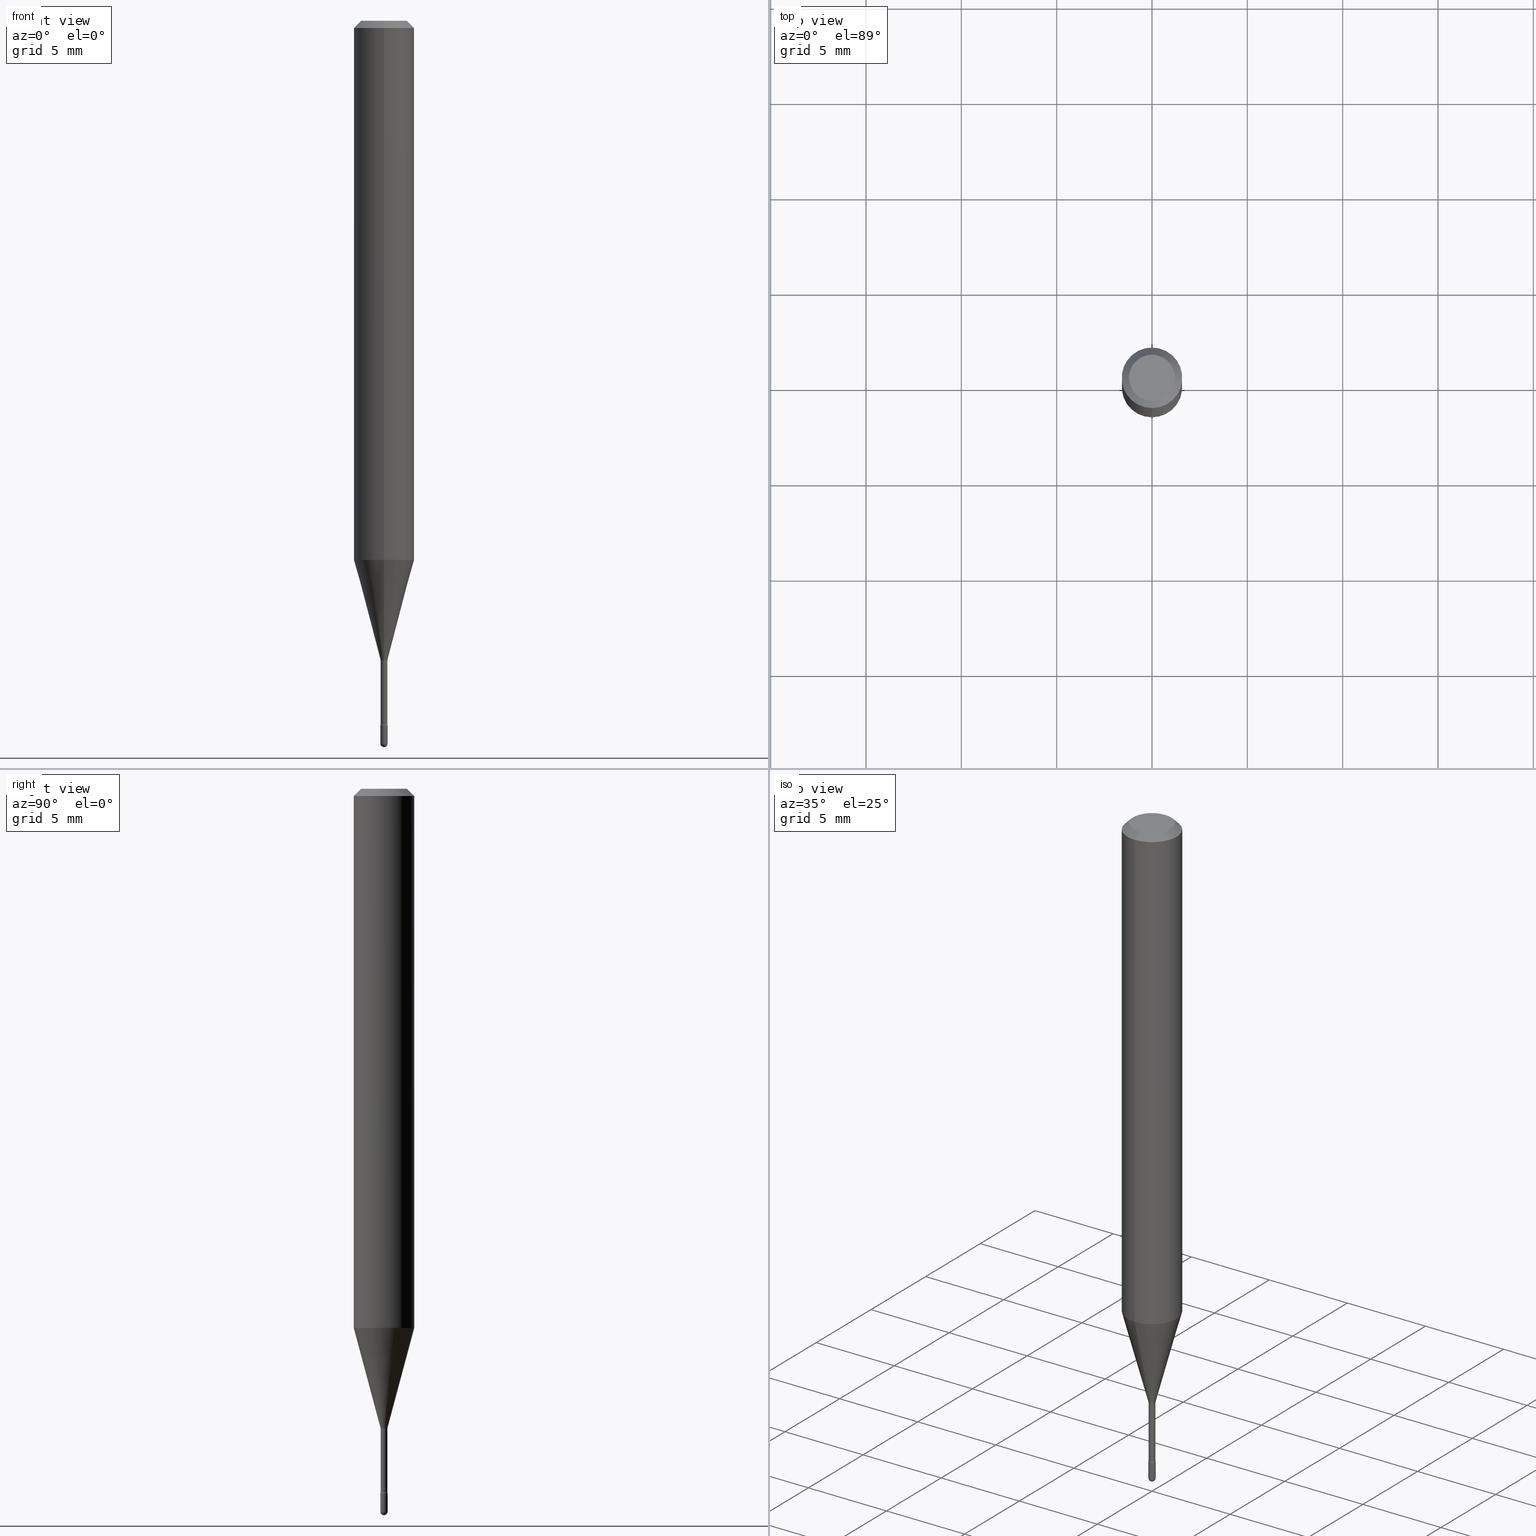
[diagram: canonical four-view strip — front | top / right | iso, engineering-drawing reading convention]
A machine part, canonical four-view strip (front | top / right | iso — engineering-drawing reading convention). The complete STEP part file that produces these views, byte-faithful:
ISO-10303-21;
HEADER;
FILE_DESCRIPTION (( 'STEP AP203' ),
    '1' );
FILE_NAME ('03779.STEP',
    '2024-04-09T20:26:05',
    ( '' ),
    ( '' ),
    'SwSTEP 2.0',
    'SolidWorks 2023',
    '' );
FILE_SCHEMA (( 'CONFIG_CONTROL_DESIGN' ));
ENDSEC;

DATA;
#1 = ADVANCED_FACE ( 'NONE', ( #410 ), #24, .T. ) ;
#2 = AXIS2_PLACEMENT_3D ( 'NONE', #62, #236, #329 ) ;
#3 = CIRCLE ( 'NONE', #141, 0.04749999999999999362 ) ;
#4 = ORIENTED_EDGE ( 'NONE', *, *, #184, .T. ) ;
#5 = LINE ( 'NONE', #444, #307 ) ;
#6 = VERTEX_POINT ( 'NONE', #525 ) ;
#7 = CARTESIAN_POINT ( 'NONE',  ( -4.364351673553645030E-16, -0.06250000000000388578, -1.113057782720306310 ) ) ;
#8 = FACE_OUTER_BOUND ( 'NONE', #501, .T. ) ;
#9 = DIRECTION ( 'NONE',  ( -2.445391970552670248E-29, 3.491591371842049924E-15, 1.000000000000000000 ) ) ;
#10 = AXIS2_PLACEMENT_3D ( 'NONE', #471, #139, #263 ) ;
#11 = CIRCLE ( 'NONE', #440, 0.007561112605664015510 ) ;
#12 = CARTESIAN_POINT ( 'NONE',  ( 3.668087955829025480E-31, -5.237387057763103556E-17, -0.01500000000000008271 ) ) ;
#13 = ORIENTED_EDGE ( 'NONE', *, *, #195, .T. ) ;
#14 = APPLICATION_CONTEXT ( 'configuration controlled 3d designs of mechanical parts and assemblies' ) ;
#15 = ORIENTED_EDGE ( 'NONE', *, *, #42, .T. ) ;
#16 = DIRECTION ( 'NONE',  ( -2.445391970552669967E-29, 3.491591371842049529E-15, 1.000000000000000000 ) ) ;
#17 = SPHERICAL_SURFACE ( 'NONE', #256, 0.007500000000000062172 ) ;
#18 = CIRCLE ( 'NONE', #385, 0.007500000000000062172 ) ;
#19 = ADVANCED_FACE ( 'NONE', ( #350 ), #186, .T. ) ;
#20 = AXIS2_PLACEMENT_3D ( 'NONE', #430, #99, #305 ) ;
#21 = CARTESIAN_POINT ( 'NONE',  ( 3.649862193231316236E-29, -5.211035898223394834E-15, -1.492499999999999938 ) ) ;
#22 = DIRECTION ( 'NONE',  ( 1.000000000000000000, -6.982962677686266711E-15, 4.876176775795935793E-29 ) ) ;
#23 =( LENGTH_UNIT ( ) NAMED_UNIT ( * ) SI_UNIT ( $, .METRE. ) );
#24 = CYLINDRICAL_SURFACE ( 'NONE', #553, 0.007050000000000000711 ) ;
#25 = FACE_OUTER_BOUND ( 'NONE', #78, .T. ) ;
#26 = ADVANCED_FACE ( 'NONE', ( #433 ), #46, .F. ) ;
#27 = ORIENTED_EDGE ( 'NONE', *, *, #118, .F. ) ;
#28 = LINE ( 'NONE', #204, #331 ) ;
#29 = CIRCLE ( 'NONE', #91, 0.007050000000000001578 ) ;
#30 = VERTEX_POINT ( 'NONE', #265 ) ;
#31 = CONICAL_SURFACE ( 'NONE', #563, 0.06250000000000000000, 0.7853981633974483900 ) ;
#32 = APPROVAL_STATUS ( 'not_yet_approved' ) ;
#33 = DIMENSIONAL_EXPONENTS ( 1.000000000000000000, 0.000000000000000000, 0.000000000000000000, 0.000000000000000000, 0.000000000000000000, 0.000000000000000000, 0.000000000000000000 ) ;
#34 = VERTEX_POINT ( 'NONE', #7 ) ;
#35 = APPROVAL_DATE_TIME ( #518, #382 ) ;
#36 = CC_DESIGN_PERSON_AND_ORGANIZATION_ASSIGNMENT ( #206, #379, ( #358 ) ) ;
#37 = PERSON ( 'UNSPECIFIED', 'UNSPECIFIED', 'UNSPECIFIED', ('UNSPECIFIED'), ('UNSPECIFIED'), ('UNSPECIFIED') ) ;
#38 = DIRECTION ( 'NONE',  ( -6.982962677686265922E-15, -1.000000000000000000, 3.483106191921935554E-15 ) ) ;
#39 = ORIENTED_EDGE ( 'NONE', *, *, #211, .F. ) ;
#40 = SHAPE_DEFINITION_REPRESENTATION ( #88, #362 ) ;
#41 = ORIENTED_EDGE ( 'NONE', *, *, #233, .T. ) ;
#42 = EDGE_CURVE ( 'NONE', #30, #61, #370, .T. ) ;
#43 = AXIS2_PLACEMENT_3D ( 'NONE', #493, #521, #260 ) ;
#44 = ADVANCED_FACE ( 'NONE', ( #434 ), #388, .F. ) ;
#45 = CC_DESIGN_APPROVAL ( #382, ( #198 ) ) ;
#46 = PLANE ( 'NONE',  #504 ) ;
#47 = DIRECTION ( 'NONE',  ( -6.982962677686265922E-15, -1.000000000000000000, 4.370956789862821150E-15 ) ) ;
#48 = CARTESIAN_POINT ( 'NONE',  ( 0.007499999999999998855, -5.237222008264699293E-17, 3.657132581846951319E-31 ) ) ;
#49 = CIRCLE ( 'NONE', #261, 0.007499999999999999722 ) ;
#50 = CIRCLE ( 'NONE', #462, 0.007499999999999998855 ) ;
#51 = ORIENTED_EDGE ( 'NONE', *, *, #549, .T. ) ;
#52 = CARTESIAN_POINT ( 'NONE',  ( 5.372493636221911788E-17, 0.007561112605659413288, -1.318092501787273330 ) ) ;
#53 = ORIENTED_EDGE ( 'NONE', *, *, #301, .T. ) ;
#54 = DIRECTION ( 'NONE',  ( -2.438088387897960049E-29, 3.491481338843145188E-15, 1.000000000000000000 ) ) ;
#55 = APPROVAL ( #489, 'UNSPECIFIED' ) ;
#56 = CARTESIAN_POINT ( 'NONE',  ( 3.668087955829025480E-31, -5.237387057763103556E-17, -0.01500000000000008271 ) ) ;
#57 = AXIS2_PLACEMENT_3D ( 'NONE', #530, #266, #485 ) ;
#58 = ORIENTED_EDGE ( 'NONE', *, *, #132, .T. ) ;
#59 = FACE_OUTER_BOUND ( 'NONE', #356, .T. ) ;
#60 = CARTESIAN_POINT ( 'NONE',  ( 3.223252820316279077E-29, -4.602240406530144368E-15, -1.318092501787273330 ) ) ;
#61 = VERTEX_POINT ( 'NONE', #268 ) ;
#62 = CARTESIAN_POINT ( 'NONE',  ( 3.232848105305976376E-29, -4.615650300851030950E-15, -1.321974787463811252 ) ) ;
#63 = PERSON_AND_ORGANIZATION ( #37, #421 ) ;
#64 = ORIENTED_EDGE ( 'NONE', *, *, #142, .T. ) ;
#65 = DIRECTION ( 'NONE',  ( -2.445391970552670248E-29, 3.491591371842049924E-15, 1.000000000000000000 ) ) ;
#66 = PLANE ( 'NONE',  #523 ) ;
#67 = DIRECTION ( 'NONE',  ( -6.982962677686265922E-15, -1.000000000000000000, 3.483106191921935554E-15 ) ) ;
#68 = CC_DESIGN_PERSON_AND_ORGANIZATION_ASSIGNMENT ( #168, #297, ( #198 ) ) ;
#69 = AXIS2_PLACEMENT_3D ( 'NONE', #302, #94, #279 ) ;
#70 = TOROIDAL_SURFACE ( 'NONE', #262, 0.02205000000000001750, 0.01500000000000001506 ) ;
#71 = DIRECTION ( 'NONE',  ( -2.445391970552670248E-29, 3.491591371842049924E-15, 1.000000000000000000 ) ) ;
#72 = ADVANCED_FACE ( 'NONE', ( #8 ), #255, .T. ) ;
#73 = DIRECTION ( 'NONE',  ( -6.982962677686265133E-15, -1.000000000000000000, 3.491591371842052290E-15 ) ) ;
#74 = CARTESIAN_POINT ( 'NONE',  ( 0.000000000000000000, 0.000000000000000000, 0.000000000000000000 ) ) ;
#75 = CARTESIAN_POINT ( 'NONE',  ( -1.169113584055446105E-44, 1.669184350826100908E-30, 4.780733988912460139E-16 ) ) ;
#76 = DIRECTION ( 'NONE',  ( -6.982962677686265922E-15, -1.000000000000000000, 3.491591371842049529E-15 ) ) ;
#77 = ORIENTED_EDGE ( 'NONE', *, *, #491, .F. ) ;
#78 = EDGE_LOOP ( 'NONE', ( #267, #51 ) ) ;
#79 = ORIENTED_EDGE ( 'NONE', *, *, #454, .T. ) ;
#80 = CARTESIAN_POINT ( 'NONE',  ( 3.649862193231316236E-29, -5.211035898223394834E-15, -1.492499999999999938 ) ) ;
#81 = APPROVAL ( #508, 'UNSPECIFIED' ) ;
#82 = VECTOR ( 'NONE', #441, 39.37007874015748143 ) ;
#83 = CIRCLE ( 'NONE', #98, 0.007499999999999999722 ) ;
#84 = ORIENTED_EDGE ( 'NONE', *, *, #373, .F. ) ;
#85 = CALENDAR_DATE ( 2024, 9, 4 ) ;
#86 = ORIENTED_EDGE ( 'NONE', *, *, #311, .T. ) ;
#87 = VERTEX_POINT ( 'NONE', #161 ) ;
#88 = PRODUCT_DEFINITION_SHAPE ( 'NONE', 'NONE',  #448 ) ;
#89 = ORIENTED_EDGE ( 'NONE', *, *, #132, .F. ) ;
#90 = ADVANCED_FACE ( 'NONE', ( #231 ), #228, .T. ) ;
#91 = AXIS2_PLACEMENT_3D ( 'NONE', #202, #400, #227 ) ;
#92 = VECTOR ( 'NONE', #557, 39.37007874015748143 ) ;
#93 = CARTESIAN_POINT ( 'NONE',  ( 2.022994137367813598E-45, -2.889531780385158954E-31, -8.274180550409738772E-17 ) ) ;
#94 = DIRECTION ( 'NONE',  ( -2.445391970552670248E-29, 3.491591371842049924E-15, 1.000000000000000000 ) ) ;
#95 = ADVANCED_FACE ( 'NONE', ( #322 ), #397, .T. ) ;
#96 = DIRECTION ( 'NONE',  ( -6.982962677686265133E-15, -1.000000000000000000, 0.000000000000000000 ) ) ;
#97 = AXIS2_PLACEMENT_3D ( 'NONE', #276, #325, #452 ) ;
#98 = AXIS2_PLACEMENT_3D ( 'NONE', #498, #71, #506 ) ;
#99 = DIRECTION ( 'NONE',  ( -2.445468806185136597E-29, 3.491481338843145583E-15, 1.000000000000000000 ) ) ;
#100 = DIRECTION ( 'NONE',  ( -6.982962677686265922E-15, -1.000000000000000000, 0.000000000000000000 ) ) ;
#101 = ADVANCED_FACE ( 'NONE', ( #499 ), #330, .F. ) ;
#102 = EDGE_LOOP ( 'NONE', ( #4, #113, #364, #389 ) ) ;
#103 = ADVANCED_FACE ( 'NONE', ( #25 ), #66, .T. ) ;
#104 = CARTESIAN_POINT ( 'NONE',  ( 3.549239530682584339E-29, -5.067373403872603698E-15, -1.451353426265657109 ) ) ;
#105 = DIRECTION ( 'NONE',  ( 1.839019923739598738E-15, 0.2588190451025247363, 0.9659258262890673130 ) ) ;
#106 = ORIENTED_EDGE ( 'NONE', *, *, #416, .F. ) ;
#107 = DIRECTION ( 'NONE',  ( -2.445468806185136877E-29, 3.491481338843145188E-15, 1.000000000000000000 ) ) ;
#108 = MECHANICAL_CONTEXT ( 'NONE', #14, 'mechanical' ) ;
#109 = VECTOR ( 'NONE', #374, 39.37007874015748143 ) ;
#110 =( GEOMETRIC_REPRESENTATION_CONTEXT ( 3 ) GLOBAL_UNCERTAINTY_ASSIGNED_CONTEXT ( ( #467 ) ) GLOBAL_UNIT_ASSIGNED_CONTEXT ( ( #159, #446, #551 ) ) REPRESENTATION_CONTEXT ( 'NONE', 'WORKASPACE' ) );
#111 = DIRECTION ( 'NONE',  ( -6.982962677686265133E-15, -1.000000000000000000, 0.000000000000000000 ) ) ;
#112 = COORDINATED_UNIVERSAL_TIME_OFFSET ( 5, 0, .BEHIND. ) ;
#113 = ORIENTED_EDGE ( 'NONE', *, *, #426, .T. ) ;
#114 = DIRECTION ( 'NONE',  ( 6.982962677686265922E-15, 1.000000000000000000, -3.483106191921935554E-15 ) ) ;
#115 = DIRECTION ( 'NONE',  ( -2.445468806185136597E-29, 3.491481338843145583E-15, 1.000000000000000000 ) ) ;
#116 = DIRECTION ( 'NONE',  ( -6.982962677686265922E-15, -1.000000000000000000, 4.370956789862821150E-15 ) ) ;
#117 = APPROVAL_DATE_TIME ( #277, #55 ) ;
#118 = EDGE_CURVE ( 'NONE', #558, #30, #475, .T. ) ;
#119 = ORIENTED_EDGE ( 'NONE', *, *, #142, .F. ) ;
#120 = ADVANCED_FACE ( 'NONE', ( #376 ), #488, .T. ) ;
#121 = DIRECTION ( 'NONE',  ( -2.445391970552670248E-29, 3.491591371842049924E-15, 1.000000000000000000 ) ) ;
#122 = CARTESIAN_POINT ( 'NONE',  ( -1.539743270429498181E-16, -0.02205000000000461452, -1.321974787463811252 ) ) ;
#123 = DIRECTION ( 'NONE',  ( -2.445391970552670248E-29, 3.491591371842049924E-15, 1.000000000000000000 ) ) ;
#124 = LOCAL_TIME ( 16, 26, 5.000000000000000000, #212 ) ;
#125 = CARTESIAN_POINT ( 'NONE',  ( -4.364351673553912750E-16, -0.06250000000000005551, -0.01499999999999986587 ) ) ;
#126 = CC_DESIGN_DATE_AND_TIME_ASSIGNMENT ( #450, #547, ( #448 ) ) ;
#127 = APPROVAL_ROLE ( '' ) ;
#128 = CC_DESIGN_APPROVAL ( #55, ( #448 ) ) ;
#129 = ORIENTED_EDGE ( 'NONE', *, *, #315, .F. ) ;
#130 = PERSON_AND_ORGANIZATION_ROLE ( 'creator' ) ;
#131 = ORIENTED_EDGE ( 'NONE', *, *, #259, .F. ) ;
#132 = EDGE_CURVE ( 'NONE', #431, #535, #29, .T. ) ;
#133 = EDGE_LOOP ( 'NONE', ( #131, #360, #106, #340 ) ) ;
#134 = AXIS2_PLACEMENT_3D ( 'NONE', #335, #121, #249 ) ;
#135 = FACE_OUTER_BOUND ( 'NONE', #133, .T. ) ;
#136 = CC_DESIGN_APPROVAL ( #81, ( #358 ) ) ;
#137 = ADVANCED_FACE ( 'NONE', ( #317 ), #147, .F. ) ;
#138 = DIRECTION ( 'NONE',  ( 1.000000000000000000, -6.982962677686269077E-15, 0.000000000000000000 ) ) ;
#139 = DIRECTION ( 'NONE',  ( -2.445391970552670248E-29, 3.491591371842049924E-15, 1.000000000000000000 ) ) ;
#140 = CIRCLE ( 'NONE', #43, 0.007499999999999998855 ) ;
#141 = AXIS2_PLACEMENT_3D ( 'NONE', #93, #146, #427 ) ;
#142 = EDGE_CURVE ( 'NONE', #357, #250, #153, .T. ) ;
#143 = ORIENTED_EDGE ( 'NONE', *, *, #259, .T. ) ;
#144 = ORIENTED_EDGE ( 'NONE', *, *, #480, .T. ) ;
#145 = EDGE_CURVE ( 'NONE', #496, #205, #351, .T. ) ;
#146 = DIRECTION ( 'NONE',  ( -2.445391970552670248E-29, 3.491591371842049924E-15, 1.000000000000000000 ) ) ;
#147 = PLANE ( 'NONE',  #286 ) ;
#148 = ORIENTED_EDGE ( 'NONE', *, *, #195, .F. ) ;
#149 = DIRECTION ( 'NONE',  ( -2.445468806185136597E-29, 3.491481338843145583E-15, 1.000000000000000000 ) ) ;
#150 = CARTESIAN_POINT ( 'NONE',  ( 3.558157112999374623E-29, -5.080105348016777334E-15, -1.455000000000000293 ) ) ;
#151 = CARTESIAN_POINT ( 'NONE',  ( 2.489070731061546259E-16, 0.007561112605659413288, -1.318092501787273330 ) ) ;
#152 = LOCAL_TIME ( 16, 26, 5.000000000000000000, #423 ) ;
#153 = CIRCLE ( 'NONE', #97, 0.04749999999999999362 ) ;
#154 = DIRECTION ( 'NONE',  ( 7.105427357601001859E-15, 1.000000000000000000, 0.000000000000000000 ) ) ;
#155 = AXIS2_PLACEMENT_3D ( 'NONE', #492, #220, #47 ) ;
#156 = DIRECTION ( 'NONE',  ( 2.445391970552670248E-29, -3.491591371842049924E-15, -1.000000000000000000 ) ) ;
#157 = DIRECTION ( 'NONE',  ( -2.445391970552670248E-29, 3.491591371842049924E-15, 1.000000000000000000 ) ) ;
#158 = LINE ( 'NONE', #48, #420 ) ;
#159 =( CONVERSION_BASED_UNIT ( 'INCH', #541 ) LENGTH_UNIT ( ) NAMED_UNIT ( #33 ) );
#160 = CARTESIAN_POINT ( 'NONE',  ( -3.773273898774340269E-16, -0.04749999999999999362, 8.310878465839997429E-17 ) ) ;
#161 = CARTESIAN_POINT ( 'NONE',  ( 0.007499999999999999722, -5.132477568099424807E-15, -1.455000000000000293 ) ) ;
#162 = CARTESIAN_POINT ( 'NONE',  ( 5.169198402658288741E-17, 0.007049999999994933583, -1.451353426265657109 ) ) ;
#163 = CIRCLE ( 'NONE', #300, 0.007499999999999998855 ) ;
#164 = LINE ( 'NONE', #422, #92 ) ;
#165 = PERSON_AND_ORGANIZATION ( #37, #421 ) ;
#166 = DIRECTION ( 'NONE',  ( -6.982962677686265922E-15, -1.000000000000000000, 3.491591371842049924E-15 ) ) ;
#167 = ADVANCED_FACE ( 'NONE', ( #59 ), #468, .F. ) ;
#168 = PERSON_AND_ORGANIZATION ( #37, #421 ) ;
#169 = CARTESIAN_POINT ( 'NONE',  ( -1.169113584055446105E-44, 1.669184350826100908E-30, 4.780733988912460139E-16 ) ) ;
#170 = EDGE_LOOP ( 'NONE', ( #89, #460, #241, #77 ) ) ;
#171 = VERTEX_POINT ( 'NONE', #200 ) ;
#172 = AXIS2_PLACEMENT_3D ( 'NONE', #21, #366, #199 ) ;
#173 = AXIS2_PLACEMENT_3D ( 'NONE', #235, #402, #38 ) ;
#174 = EDGE_LOOP ( 'NONE', ( #248, #476, #560, #39, #86 ) ) ;
#175 = EDGE_CURVE ( 'NONE', #431, #61, #445, .T. ) ;
#176 = APPLICATION_CONTEXT ( 'configuration controlled 3d designs of mechanical parts and assemblies' ) ;
#177 = ORIENTED_EDGE ( 'NONE', *, *, #491, .T. ) ;
#178 = AXIS2_PLACEMENT_3D ( 'NONE', #545, #437, #442 ) ;
#179 = DIRECTION ( 'NONE',  ( -2.445468806185136597E-29, 3.491481338843145583E-15, 1.000000000000000000 ) ) ;
#180 = CARTESIAN_POINT ( 'NONE',  ( 3.649862193231316236E-29, -5.211035898223394834E-15, -1.492499999999999938 ) ) ;
#181 = EDGE_LOOP ( 'NONE', ( #53, #64 ) ) ;
#182 = LINE ( 'NONE', #221, #82 ) ;
#183 = EDGE_LOOP ( 'NONE', ( #515, #185, #456, #465 ) ) ;
#184 = EDGE_CURVE ( 'NONE', #34, #395, #562, .T. ) ;
#185 = ORIENTED_EDGE ( 'NONE', *, *, #503, .T. ) ;
#186 = CONICAL_SURFACE ( 'NONE', #10, 0.007561112605664015510, 0.2617993877991500740 ) ;
#187 = AXIS2_PLACEMENT_3D ( 'NONE', #363, #222, #96 ) ;
#188 = DIRECTION ( 'NONE',  ( -6.982962677686266711E-15, -1.000000000000000000, 0.000000000000000000 ) ) ;
#189 = ORIENTED_EDGE ( 'NONE', *, *, #454, .F. ) ;
#190 = CARTESIAN_POINT ( 'NONE',  ( 3.223252820316279077E-29, -4.602240406530144368E-15, -1.318092501787273330 ) ) ;
#191 = CYLINDRICAL_SURFACE ( 'NONE', #20, 0.007499999999999998855 ) ;
#192 = DIRECTION ( 'NONE',  ( -2.445468806185136877E-29, 3.491481338843145188E-15, 1.000000000000000000 ) ) ;
#193 = DIRECTION ( 'NONE',  ( 6.982962677686265922E-15, 1.000000000000000000, -3.483106191921935554E-15 ) ) ;
#194 = CARTESIAN_POINT ( 'NONE',  ( -0.007499999999999998855, -5.092279917938078523E-15, -1.492499999999999938 ) ) ;
#195 = EDGE_CURVE ( 'NONE', #535, #30, #284, .T. ) ;
#196 = CARTESIAN_POINT ( 'NONE',  ( 2.721862564625396100E-29, -3.886342950507865712E-15, -1.113057782720306532 ) ) ;
#197 = AXIS2_PLACEMENT_3D ( 'NONE', #190, #239, #505 ) ;
#198 = PRODUCT_DEFINITION_FORMATION_WITH_SPECIFIED_SOURCE ( 'ANY', '', #517, .NOT_KNOWN. ) ;
#199 = DIRECTION ( 'NONE',  ( -7.105427357601000281E-15, -1.000000000000000000, 0.000000000000000000 ) ) ;
#200 = CARTESIAN_POINT ( 'NONE',  ( 0.007499999999999998855, -5.197942843202733163E-15, -1.492499999999999938 ) ) ;
#201 = COORDINATED_UNIVERSAL_TIME_OFFSET ( 5, 0, .BEHIND. ) ;
#202 = CARTESIAN_POINT ( 'NONE',  ( 3.549128015024145093E-29, -5.067533100642565036E-15, -1.451353426265657109 ) ) ;
#203 = DIRECTION ( 'NONE',  ( -6.982962677686265133E-15, -1.000000000000000000, 3.491591371842052290E-15 ) ) ;
#204 = CARTESIAN_POINT ( 'NONE',  ( 4.440892098500625669E-16, 0.06250000000000000000, 2.598489381511179183E-16 ) ) ;
#205 = VERTEX_POINT ( 'NONE', #546 ) ;
#206 = PERSON_AND_ORGANIZATION ( #37, #421 ) ;
#207 = DIRECTION ( 'NONE',  ( -2.445391970552670248E-29, 3.491591371842049924E-15, 1.000000000000000000 ) ) ;
#208 = ORIENTED_EDGE ( 'NONE', *, *, #288, .T. ) ;
#209 = CALENDAR_DATE ( 2024, 9, 4 ) ;
#210 = EDGE_LOOP ( 'NONE', ( #79, #144, #405, #129 ) ) ;
#211 = EDGE_CURVE ( 'NONE', #171, #87, #158, .T. ) ;
#212 = COORDINATED_UNIVERSAL_TIME_OFFSET ( 5, 0, .BEHIND. ) ;
#213 = VECTOR ( 'NONE', #192, 39.37007874015748143 ) ;
#214 = EDGE_LOOP ( 'NONE', ( #564, #457, #282, #479 ) ) ;
#215 = LOCAL_TIME ( 16, 26, 5.000000000000000000, #112 ) ;
#216 = DIRECTION ( 'NONE',  ( -2.445391970552670248E-29, 3.491591371842049924E-15, 1.000000000000000000 ) ) ;
#217 = ADVANCED_FACE ( 'NONE', ( #135 ), #270, .T. ) ;
#218 = AXIS2_PLACEMENT_3D ( 'NONE', #196, #371, #116 ) ;
#219 = CIRCLE ( 'NONE', #352, 0.06250000000000000000 ) ;
#220 = DIRECTION ( 'NONE',  ( -2.445391970552670248E-29, 3.491591371842049924E-15, 1.000000000000000000 ) ) ;
#221 = CARTESIAN_POINT ( 'NONE',  ( -4.287811248607203282E-16, -0.06250000000000005551, -0.01499999999999986587 ) ) ;
#222 = DIRECTION ( 'NONE',  ( -1.000000000000000000, 6.982962677686265922E-15, -4.883557194083112340E-29 ) ) ;
#223 = ORIENTED_EDGE ( 'NONE', *, *, #332, .F. ) ;
#224 = DIRECTION ( 'NONE',  ( -2.445391970552670248E-29, 3.491591371842049529E-15, 1.000000000000000000 ) ) ;
#225 = DIRECTION ( 'NONE',  ( -6.982962677686265922E-15, -1.000000000000000000, 3.491591371842049924E-15 ) ) ;
#226 = AXIS2_PLACEMENT_3D ( 'NONE', #122, #536, #111 ) ;
#227 = DIRECTION ( 'NONE',  ( -6.982962677686265133E-15, -1.000000000000000000, 0.000000000000000000 ) ) ;
#228 = CONICAL_SURFACE ( 'NONE', #197, 0.007561112605664015510, 0.2617993877991500740 ) ;
#229 = AXIS2_PLACEMENT_3D ( 'NONE', #258, #179, #240 ) ;
#230 = DIRECTION ( 'NONE',  ( -1.000000000000000000, 6.982962677686265922E-15, -4.883557194083113462E-29 ) ) ;
#231 = FACE_OUTER_BOUND ( 'NONE', #210, .T. ) ;
#232 = LINE ( 'NONE', #52, #274 ) ;
#233 = EDGE_CURVE ( 'NONE', #357, #451, #182, .T. ) ;
#234 = VERTEX_POINT ( 'NONE', #194 ) ;
#235 = CARTESIAN_POINT ( 'NONE',  ( 3.668087955829025480E-31, -5.237387057763103556E-17, -0.01500000000000008271 ) ) ;
#236 = DIRECTION ( 'NONE',  ( -2.445391970552670248E-29, 3.491591371842049924E-15, 1.000000000000000000 ) ) ;
#237 = DIRECTION ( 'NONE',  ( 1.000000000000000000, -6.982962677686269077E-15, 0.000000000000000000 ) ) ;
#238 = DIRECTION ( 'NONE',  ( 6.982962677686265922E-15, 1.000000000000000000, 0.000000000000000000 ) ) ;
#239 = DIRECTION ( 'NONE',  ( -2.445391970552670248E-29, 3.491591371842049924E-15, 1.000000000000000000 ) ) ;
#240 = DIRECTION ( 'NONE',  ( 1.000000000000000000, -6.982962677686268288E-15, 0.000000000000000000 ) ) ;
#241 = ORIENTED_EDGE ( 'NONE', *, *, #348, .T. ) ;
#242 = AXIS2_PLACEMENT_3D ( 'NONE', #529, #520, #100 ) ;
#243 = CIRCLE ( 'NONE', #187, 0.01500000000000001506 ) ;
#244 = EDGE_CURVE ( 'NONE', #61, #30, #295, .T. ) ;
#245 = EDGE_CURVE ( 'NONE', #234, #424, #526, .T. ) ;
#246 = DIRECTION ( 'NONE',  ( -2.445391970552670248E-29, 3.491591371842049924E-15, 1.000000000000000000 ) ) ;
#247 = CARTESIAN_POINT ( 'NONE',  ( 3.649862193231316236E-29, -5.211035898223394834E-15, -1.492499999999999938 ) ) ;
#248 = ORIENTED_EDGE ( 'NONE', *, *, #294, .T. ) ;
#249 = DIRECTION ( 'NONE',  ( -6.982962677686265133E-15, -1.000000000000000000, 0.000000000000000000 ) ) ;
#250 = VERTEX_POINT ( 'NONE', #369 ) ;
#251 = AXIS2_PLACEMENT_3D ( 'NONE', #408, #412, #494 ) ;
#252 = CIRCLE ( 'NONE', #155, 0.06250000000000000000 ) ;
#253 = ORIENTED_EDGE ( 'NONE', *, *, #416, .T. ) ;
#254 = DATE_TIME_ROLE ( 'classification_date' ) ;
#255 = CONICAL_SURFACE ( 'NONE', #439, 0.06250000000000000000, 0.7853981633974483900 ) ;
#256 = AXIS2_PLACEMENT_3D ( 'NONE', #324, #502, #497 ) ;
#257 = EDGE_CURVE ( 'NONE', #87, #424, #49, .T. ) ;
#258 = CARTESIAN_POINT ( 'NONE',  ( 3.558157112999374623E-29, -5.080105348016777334E-15, -1.455000000000000293 ) ) ;
#259 = EDGE_CURVE ( 'NONE', #6, #490, #18, .T. ) ;
#260 = DIRECTION ( 'NONE',  ( 1.000000000000000000, -6.982962677686269077E-15, 0.000000000000000000 ) ) ;
#261 = AXIS2_PLACEMENT_3D ( 'NONE', #304, #115, #483 ) ;
#262 = AXIS2_PLACEMENT_3D ( 'NONE', #406, #65, #166 ) ;
#263 = DIRECTION ( 'NONE',  ( -6.982962677686266711E-15, -1.000000000000000000, 0.000000000000000000 ) ) ;
#264 = CARTESIAN_POINT ( 'NONE',  ( -5.237222008261148803E-17, -0.007500000000005090268, -1.455000000000000293 ) ) ;
#265 = CARTESIAN_POINT ( 'NONE',  ( -4.922988687765584461E-17, -0.007050000000004615075, -1.321974787463810808 ) ) ;
#266 = DIRECTION ( 'NONE',  ( -2.445391970552670248E-29, 3.491591371842049924E-15, 1.000000000000000000 ) ) ;
#267 = ORIENTED_EDGE ( 'NONE', *, *, #257, .T. ) ;
#268 = CARTESIAN_POINT ( 'NONE',  ( 5.009326287112256689E-17, 0.007049999999995383744, -1.321974787463810808 ) ) ;
#269 = EDGE_LOOP ( 'NONE', ( #289, #253, #486, #482, #309 ) ) ;
#270 = SPHERICAL_SURFACE ( 'NONE', #316, 0.007500000000000062172 ) ;
#271 = AXIS2_PLACEMENT_3D ( 'NONE', #540, #246, #73 ) ;
#272 = CARTESIAN_POINT ( 'NONE',  ( 3.668087955829025480E-31, -5.237387057763103556E-17, -0.01500000000000008271 ) ) ;
#273 = DIRECTION ( 'NONE',  ( 0.000000000000000000, 0.000000000000000000, 1.000000000000000000 ) ) ;
#274 = VECTOR ( 'NONE', #105, 39.37007874015748854 ) ;
#275 = DIRECTION ( 'NONE',  ( -1.807323732225328562E-15, -0.2588190451025179639, 0.9659258262890690894 ) ) ;
#276 = CARTESIAN_POINT ( 'NONE',  ( 2.022994137367813598E-45, -2.889531780385158954E-31, -8.274180550409738772E-17 ) ) ;
#277 = DATE_AND_TIME ( #375, #215 ) ;
#278 = CARTESIAN_POINT ( 'NONE',  ( -4.922988687765268916E-17, -0.007050000000005069573, -1.451353426265657109 ) ) ;
#279 = DIRECTION ( 'NONE',  ( -6.982962677686265922E-15, -1.000000000000000000, 0.000000000000000000 ) ) ;
#280 = CARTESIAN_POINT ( 'NONE',  ( -4.922988687768817558E-17, -0.007050000000000000711, 5.026891180627324978E-16 ) ) ;
#281 = PERSON_AND_ORGANIZATION_ROLE ( 'creator' ) ;
#282 = ORIENTED_EDGE ( 'NONE', *, *, #337, .T. ) ;
#283 = EDGE_CURVE ( 'NONE', #6, #474, #407, .T. ) ;
#284 = LINE ( 'NONE', #280, #109 ) ;
#285 = CARTESIAN_POINT ( 'NONE',  ( -5.279896712710274810E-17, -0.007561112605668618598, -1.318092501787273330 ) ) ;
#286 = AXIS2_PLACEMENT_3D ( 'NONE', #484, #312, #550 ) ;
#287 = LOCAL_TIME ( 16, 26, 5.000000000000000000, #516 ) ;
#288 = EDGE_CURVE ( 'NONE', #34, #451, #5, .T. ) ;
#289 = ORIENTED_EDGE ( 'NONE', *, *, #245, .F. ) ;
#290 = CYLINDRICAL_SURFACE ( 'NONE', #299, 0.06250000000000000000 ) ;
#291 = ORIENTED_EDGE ( 'NONE', *, *, #175, .T. ) ;
#292 = DATE_AND_TIME ( #209, #152 ) ;
#293 = FACE_OUTER_BOUND ( 'NONE', #298, .T. ) ;
#294 = EDGE_CURVE ( 'NONE', #490, #234, #140, .T. ) ;
#295 = CIRCLE ( 'NONE', #69, 0.007049999999999998976 ) ;
#296 = CYLINDRICAL_SURFACE ( 'NONE', #57, 0.06250000000000000000 ) ;
#297 = PERSON_AND_ORGANIZATION_ROLE ( 'design_supplier' ) ;
#298 = EDGE_LOOP ( 'NONE', ( #511, #341, #177, #458 ) ) ;
#299 = AXIS2_PLACEMENT_3D ( 'NONE', #169, #157, #76 ) ;
#300 = AXIS2_PLACEMENT_3D ( 'NONE', #80, #509, #237 ) ;
#301 = EDGE_CURVE ( 'NONE', #250, #357, #3, .T. ) ;
#302 = CARTESIAN_POINT ( 'NONE',  ( 3.232746530537076422E-29, -4.615795761701370785E-15, -1.321974787463810808 ) ) ;
#303 = FACE_OUTER_BOUND ( 'NONE', #102, .T. ) ;
#304 = CARTESIAN_POINT ( 'NONE',  ( 3.558157112999374623E-29, -5.080105348016777334E-15, -1.455000000000000293 ) ) ;
#305 = DIRECTION ( 'NONE',  ( 1.000000000000000000, -6.982962677686266711E-15, 4.876176775795935793E-29 ) ) ;
#306 = ORIENTED_EDGE ( 'NONE', *, *, #507, .T. ) ;
#307 = VECTOR ( 'NONE', #544, 39.37007874015748143 ) ;
#308 = CIRCLE ( 'NONE', #229, 0.007499999999999999722 ) ;
#309 = ORIENTED_EDGE ( 'NONE', *, *, #549, .F. ) ;
#310 = CARTESIAN_POINT ( 'NONE',  ( -5.279896712710274810E-17, -0.007561112605668618598, -1.318092501787273330 ) ) ;
#311 = EDGE_CURVE ( 'NONE', #171, #490, #396, .T. ) ;
#312 = DIRECTION ( 'NONE',  ( 2.445391970552670248E-29, -3.491591371842049529E-15, -1.000000000000000000 ) ) ;
#313 = ORIENTED_EDGE ( 'NONE', *, *, #348, .F. ) ;
#314 = DIRECTION ( 'NONE',  ( 6.982962677686265922E-15, 1.000000000000000000, 0.000000000000000000 ) ) ;
#315 = EDGE_CURVE ( 'NONE', #558, #34, #472, .T. ) ;
#316 = AXIS2_PLACEMENT_3D ( 'NONE', #321, #230, #314 ) ;
#317 = FACE_OUTER_BOUND ( 'NONE', #181, .T. ) ;
#318 = PERSON_AND_ORGANIZATION ( #37, #421 ) ;
#319 = CIRCLE ( 'NONE', #344, 0.007561112605664015510 ) ;
#320 = CARTESIAN_POINT ( 'NONE',  ( 1.566746732351376648E-16, 0.02204999999999494864, -1.451353426265657109 ) ) ;
#321 = CARTESIAN_POINT ( 'NONE',  ( 3.649862193231316236E-29, -5.211035898223394834E-15, -1.492499999999999938 ) ) ;
#322 = FACE_OUTER_BOUND ( 'NONE', #174, .T. ) ;
#323 = APPLICATION_PROTOCOL_DEFINITION ( 'international standard', 'config_control_design', 1994, #14 ) ;
#324 = CARTESIAN_POINT ( 'NONE',  ( 3.649862193231316236E-29, -5.211035898223394834E-15, -1.492499999999999938 ) ) ;
#325 = DIRECTION ( 'NONE',  ( -2.445391970552670248E-29, 3.491591371842049924E-15, 1.000000000000000000 ) ) ;
#326 = APPLICATION_PROTOCOL_DEFINITION ( 'international standard', 'config_control_design', 1994, #176 ) ;
#327 = CARTESIAN_POINT ( 'NONE',  ( 4.440892098500896347E-16, 0.06249999999999611422, -1.113057782720306754 ) ) ;
#328 = MANIFOLD_SOLID_BREP ( 'Body-Move/Copy2[2]', #543 ) ;
#329 = DIRECTION ( 'NONE',  ( -6.982962677686266711E-15, -1.000000000000000000, 3.491591371842049924E-15 ) ) ;
#330 = TOROIDAL_SURFACE ( 'NONE', #178, 0.02205000000000000016, 0.01499999999999998904 ) ;
#331 = VECTOR ( 'NONE', #552, 39.37007874015748143 ) ;
#332 = EDGE_CURVE ( 'NONE', #447, #451, #425, .T. ) ;
#333 = CARTESIAN_POINT ( 'NONE',  ( 4.440892098500899305E-16, 0.06249999999999995143, -0.01500000000000030129 ) ) ;
#334 = DATE_AND_TIME ( #555, #124 ) ;
#335 = CARTESIAN_POINT ( 'NONE',  ( 3.549128015024145093E-29, -5.067533100642565036E-15, -1.451353426265657109 ) ) ;
#336 = ORIENTED_EDGE ( 'NONE', *, *, #244, .F. ) ;
#337 = EDGE_CURVE ( 'NONE', #250, #447, #164, .T. ) ;
#338 = APPROVAL_DATE_TIME ( #292, #81 ) ;
#339 = FACE_OUTER_BOUND ( 'NONE', #383, .T. ) ;
#340 = ORIENTED_EDGE ( 'NONE', *, *, #294, .F. ) ;
#341 = ORIENTED_EDGE ( 'NONE', *, *, #398, .F. ) ;
#342 = DESIGN_CONTEXT ( 'detailed design', #176, 'design' ) ;
#343 = CLOSED_SHELL ( 'NONE', ( #95, #217, #103, #394, #464 ) ) ;
#344 = AXIS2_PLACEMENT_3D ( 'NONE', #60, #9, #188 ) ;
#345 = ORIENTED_EDGE ( 'NONE', *, *, #42, .F. ) ;
#346 = ORIENTED_EDGE ( 'NONE', *, *, #426, .F. ) ;
#347 = PERSON_AND_ORGANIZATION ( #37, #421 ) ;
#348 = EDGE_CURVE ( 'NONE', #205, #496, #83, .T. ) ;
#349 = ORIENTED_EDGE ( 'NONE', *, *, #565, .T. ) ;
#350 = FACE_OUTER_BOUND ( 'NONE', #183, .T. ) ;
#351 = CIRCLE ( 'NONE', #251, 0.007499999999999999722 ) ;
#352 = AXIS2_PLACEMENT_3D ( 'NONE', #12, #123, #67 ) ;
#353 = CARTESIAN_POINT ( 'NONE',  ( 3.649862193231316236E-29, -5.211035898223394834E-15, -1.492499999999999938 ) ) ;
#354 = CC_DESIGN_PERSON_AND_ORGANIZATION_ASSIGNMENT ( #63, #281, ( #448 ) ) ;
#355 = CARTESIAN_POINT ( 'NONE',  ( -0.007499999999999998855, 5.329070518200750581E-17, -3.689201317691178390E-31 ) ) ;
#356 = EDGE_LOOP ( 'NONE', ( #401, #306, #378, #27 ) ) ;
#357 = VERTEX_POINT ( 'NONE', #160 ) ;
#358 = SECURITY_CLASSIFICATION ( '', '', #463 ) ;
#359 = CARTESIAN_POINT ( 'NONE',  ( 1.566746732351343861E-16, 0.02204999999999538579, -1.321974787463811252 ) ) ;
#360 = ORIENTED_EDGE ( 'NONE', *, *, #283, .T. ) ;
#361 = DIRECTION ( 'NONE',  ( 1.000000000000000000, -6.982962677686265922E-15, 4.876176775795935793E-29 ) ) ;
#362 = ADVANCED_BREP_SHAPE_REPRESENTATION ( '03779', ( #512, #328, #453 ), #110 ) ;
#363 = CARTESIAN_POINT ( 'NONE',  ( -1.539743270429467860E-16, -0.02205000000000508290, -1.451353426265657109 ) ) ;
#364 = ORIENTED_EDGE ( 'NONE', *, *, #565, .F. ) ;
#365 = ADVANCED_FACE ( 'NONE', ( #293 ), #70, .F. ) ;
#366 = DIRECTION ( 'NONE',  ( -1.000000000000000000, 7.105427357601001070E-15, -4.926315508542082329E-29 ) ) ;
#367 = DIRECTION ( 'NONE',  ( -2.445468806185136597E-29, 3.491481338843145583E-15, 1.000000000000000000 ) ) ;
#368 = PERSON_AND_ORGANIZATION ( #37, #421 ) ;
#369 = CARTESIAN_POINT ( 'NONE',  ( 3.840629472727447874E-16, 0.04749999999999999362, -2.485923956665947374E-16 ) ) ;
#370 = CIRCLE ( 'NONE', #242, 0.007049999999999998976 ) ;
#371 = DIRECTION ( 'NONE',  ( -2.445391970552670248E-29, 3.491591371842049924E-15, 1.000000000000000000 ) ) ;
#372 = APPROVAL_PERSON_ORGANIZATION ( #318, #55, #500 ) ;
#373 = EDGE_CURVE ( 'NONE', #474, #171, #163, .T. ) ;
#374 = DIRECTION ( 'NONE',  ( -2.445391970552669967E-29, 3.491591371842049529E-15, 1.000000000000000000 ) ) ;
#375 = CALENDAR_DATE ( 2024, 9, 4 ) ;
#376 = FACE_OUTER_BOUND ( 'NONE', #387, .T. ) ;
#377 = DIRECTION ( 'NONE',  ( -2.445468806185136597E-29, 3.491481338843145583E-15, 1.000000000000000000 ) ) ;
#378 = ORIENTED_EDGE ( 'NONE', *, *, #244, .T. ) ;
#379 = PERSON_AND_ORGANIZATION_ROLE ( 'classification_officer' ) ;
#380 = VECTOR ( 'NONE', #275, 39.37007874015748854 ) ;
#381 = CC_DESIGN_SECURITY_CLASSIFICATION ( #358, ( #198 ) ) ;
#382 = APPROVAL ( #32, 'UNSPECIFIED' ) ;
#383 = EDGE_LOOP ( 'NONE', ( #554, #143, #386, #84 ) ) ;
#384 = ORIENTED_EDGE ( 'NONE', *, *, #507, .F. ) ;
#385 = AXIS2_PLACEMENT_3D ( 'NONE', #180, #392, #238 ) ;
#386 = ORIENTED_EDGE ( 'NONE', *, *, #311, .F. ) ;
#387 = EDGE_LOOP ( 'NONE', ( #510, #291, #345, #148 ) ) ;
#388 = TOROIDAL_SURFACE ( 'NONE', #461, 0.02205000000000001750, 0.01500000000000001506 ) ;
#389 = ORIENTED_EDGE ( 'NONE', *, *, #288, .F. ) ;
#390 = AXIS2_PLACEMENT_3D ( 'NONE', #320, #542, #154 ) ;
#391 = ADVANCED_FACE ( 'NONE', ( #411 ), #290, .T. ) ;
#392 = DIRECTION ( 'NONE',  ( 1.000000000000000000, -6.982962677686265922E-15, 4.883557194083112340E-29 ) ) ;
#393 = DIRECTION ( 'NONE',  ( -6.982962677686265922E-15, -1.000000000000000000, 3.491591371842049529E-15 ) ) ;
#394 = ADVANCED_FACE ( 'NONE', ( #339 ), #17, .T. ) ;
#395 = VERTEX_POINT ( 'NONE', #327 ) ;
#396 = CIRCLE ( 'NONE', #514, 0.007499999999999998855 ) ;
#397 = CYLINDRICAL_SURFACE ( 'NONE', #531, 0.007499999999999998855 ) ;
#398 = EDGE_CURVE ( 'NONE', #535, #431, #477, .T. ) ;
#399 = DIRECTION ( 'NONE',  ( 1.000000000000000000, -7.105427357601001070E-15, 4.926316856057681359E-29 ) ) ;
#400 = DIRECTION ( 'NONE',  ( -2.445391970552670248E-29, 3.491591371842049924E-15, 1.000000000000000000 ) ) ;
#401 = ORIENTED_EDGE ( 'NONE', *, *, #503, .F. ) ;
#402 = DIRECTION ( 'NONE',  ( -2.445391970552670248E-29, 3.491591371842049924E-15, 1.000000000000000000 ) ) ;
#403 = CARTESIAN_POINT ( 'NONE',  ( 5.009326287108705583E-17, 0.007050000000000000711, 4.534576797197596287E-16 ) ) ;
#404 = CALENDAR_DATE ( 2024, 9, 4 ) ;
#405 = ORIENTED_EDGE ( 'NONE', *, *, #184, .F. ) ;
#406 = CARTESIAN_POINT ( 'NONE',  ( 3.549239530682584339E-29, -5.067373403872603698E-15, -1.451353426265657109 ) ) ;
#407 = CIRCLE ( 'NONE', #172, 0.007500000000000062172 ) ;
#408 = CARTESIAN_POINT ( 'NONE',  ( 3.558045317154136376E-29, -5.080265446030182968E-15, -1.455000000000000293 ) ) ;
#409 = CIRCLE ( 'NONE', #487, 0.01499999999999998904 ) ;
#410 = FACE_OUTER_BOUND ( 'NONE', #429, .T. ) ;
#411 = FACE_OUTER_BOUND ( 'NONE', #455, .T. ) ;
#412 = DIRECTION ( 'NONE',  ( -2.445391970552670248E-29, 3.491591371842049924E-15, 1.000000000000000000 ) ) ;
#413 = DIRECTION ( 'NONE',  ( 1.000000000000000000, 0.000000000000000000, 0.000000000000000000 ) ) ;
#414 = DIRECTION ( 'NONE',  ( -2.445391970552670248E-29, 3.491591371842049924E-15, 1.000000000000000000 ) ) ;
#415 = DIRECTION ( 'NONE',  ( 1.000000000000000000, -6.982962677686269077E-15, 0.000000000000000000 ) ) ;
#416 = EDGE_CURVE ( 'NONE', #234, #474, #50, .T. ) ;
#417 = CARTESIAN_POINT ( 'NONE',  ( 3.223252820316279077E-29, -4.602240406530144368E-15, -1.318092501787273330 ) ) ;
#418 = APPROVAL_PERSON_ORGANIZATION ( #165, #81, #127 ) ;
#419 = ORIENTED_EDGE ( 'NONE', *, *, #145, .F. ) ;
#420 = VECTOR ( 'NONE', #107, 39.37007874015748143 ) ;
#421 = ORGANIZATION ( 'UNSPECIFIED', 'UNSPECIFIED', '' ) ;
#422 = CARTESIAN_POINT ( 'NONE',  ( 4.364351673553919652E-16, 0.06249999999999995143, -0.01500000000000030129 ) ) ;
#423 = COORDINATED_UNIVERSAL_TIME_OFFSET ( 5, 0, .BEHIND. ) ;
#424 = VERTEX_POINT ( 'NONE', #556 ) ;
#425 = CIRCLE ( 'NONE', #173, 0.06250000000000000000 ) ;
#426 = EDGE_CURVE ( 'NONE', #395, #447, #28, .T. ) ;
#427 = DIRECTION ( 'NONE',  ( -6.982962677686266711E-15, -1.000000000000000000, 3.491591371842049924E-15 ) ) ;
#428 = ORIENTED_EDGE ( 'NONE', *, *, #548, .T. ) ;
#429 = EDGE_LOOP ( 'NONE', ( #532, #58, #13, #336 ) ) ;
#430 = CARTESIAN_POINT ( 'NONE',  ( 0.000000000000000000, 0.000000000000000000, 0.000000000000000000 ) ) ;
#431 = VERTEX_POINT ( 'NONE', #162 ) ;
#432 = LOCAL_TIME ( 16, 26, 5.000000000000000000, #201 ) ;
#433 = FACE_OUTER_BOUND ( 'NONE', #538, .T. ) ;
#434 = FACE_OUTER_BOUND ( 'NONE', #170, .T. ) ;
#435 = CC_DESIGN_PERSON_AND_ORGANIZATION_ASSIGNMENT ( #466, #130, ( #198 ) ) ;
#436 = CARTESIAN_POINT ( 'NONE',  ( -5.329070518197121820E-17, -0.007500000000005240322, -1.492499999999999938 ) ) ;
#437 = DIRECTION ( 'NONE',  ( -2.445391970552670248E-29, 3.491591371842049924E-15, 1.000000000000000000 ) ) ;
#438 = FACE_OUTER_BOUND ( 'NONE', #214, .T. ) ;
#439 = AXIS2_PLACEMENT_3D ( 'NONE', #272, #156, #193 ) ;
#440 = AXIS2_PLACEMENT_3D ( 'NONE', #417, #207, #469 ) ;
#441 = DIRECTION ( 'NONE',  ( -4.851104656540964275E-15, -0.7071067811865500152, -0.7071067811865450192 ) ) ;
#442 = DIRECTION ( 'NONE',  ( -6.982962677686266711E-15, -1.000000000000000000, 3.491591371842049924E-15 ) ) ;
#443 = ORIENTED_EDGE ( 'NONE', *, *, #337, .F. ) ;
#444 = CARTESIAN_POINT ( 'NONE',  ( -4.364351673553916201E-16, -0.06250000000000000000, 6.962978596313741588E-16 ) ) ;
#445 = LINE ( 'NONE', #403, #513 ) ;
#446 =( NAMED_UNIT ( * ) PLANE_ANGLE_UNIT ( ) SI_UNIT ( $, .RADIAN. ) );
#447 = VERTEX_POINT ( 'NONE', #333 ) ;
#448 = PRODUCT_DEFINITION ( 'UNKNOWN', '', #198, #342 ) ;
#449 = CARTESIAN_POINT ( 'NONE',  ( 0.000000000000000000, 0.000000000000000000, 0.000000000000000000 ) ) ;
#450 = DATE_AND_TIME ( #404, #432 ) ;
#451 = VERTEX_POINT ( 'NONE', #125 ) ;
#452 = DIRECTION ( 'NONE',  ( -6.982962677686266711E-15, -1.000000000000000000, 3.491591371842049924E-15 ) ) ;
#453 = AXIS2_PLACEMENT_3D ( 'NONE', #74, #273, #413 ) ;
#454 = EDGE_CURVE ( 'NONE', #558, #566, #11, .T. ) ;
#455 = EDGE_LOOP ( 'NONE', ( #346, #428, #208, #223 ) ) ;
#456 = ORIENTED_EDGE ( 'NONE', *, *, #315, .T. ) ;
#457 = ORIENTED_EDGE ( 'NONE', *, *, #301, .F. ) ;
#458 = ORIENTED_EDGE ( 'NONE', *, *, #145, .T. ) ;
#459 = ADVANCED_FACE ( 'NONE', ( #303 ), #296, .T. ) ;
#460 = ORIENTED_EDGE ( 'NONE', *, *, #539, .T. ) ;
#461 = AXIS2_PLACEMENT_3D ( 'NONE', #104, #216, #225 ) ;
#462 = AXIS2_PLACEMENT_3D ( 'NONE', #247, #377, #415 ) ;
#463 = SECURITY_CLASSIFICATION_LEVEL ( 'unclassified' ) ;
#464 = ADVANCED_FACE ( 'NONE', ( #481 ), #191, .T. ) ;
#465 = ORIENTED_EDGE ( 'NONE', *, *, #548, .F. ) ;
#466 = PERSON_AND_ORGANIZATION ( #37, #421 ) ;
#467 = UNCERTAINTY_MEASURE_WITH_UNIT (LENGTH_MEASURE( 1.000000000000000082E-05 ), #159, 'distance_accuracy_value', 'NONE');
#468 = TOROIDAL_SURFACE ( 'NONE', #2, 0.02205000000000000016, 0.01499999999999998904 ) ;
#469 = DIRECTION ( 'NONE',  ( -6.982962677686266711E-15, -1.000000000000000000, 0.000000000000000000 ) ) ;
#470 = CIRCLE ( 'NONE', #390, 0.01500000000000001506 ) ;
#471 = CARTESIAN_POINT ( 'NONE',  ( 3.223252820316279077E-29, -4.602240406530144368E-15, -1.318092501787273330 ) ) ;
#472 = LINE ( 'NONE', #310, #380 ) ;
#473 = DIRECTION ( 'NONE',  ( 2.445391970552670248E-29, -3.491591371842049924E-15, -1.000000000000000000 ) ) ;
#474 = VERTEX_POINT ( 'NONE', #436 ) ;
#475 = CIRCLE ( 'NONE', #226, 0.01499999999999998904 ) ;
#476 = ORIENTED_EDGE ( 'NONE', *, *, #245, .T. ) ;
#477 = CIRCLE ( 'NONE', #134, 0.007050000000000001578 ) ;
#478 = CARTESIAN_POINT ( 'NONE',  ( 5.237222008268257796E-17, 0.007499999999994919585, -1.455000000000000293 ) ) ;
#479 = ORIENTED_EDGE ( 'NONE', *, *, #332, .T. ) ;
#480 = EDGE_CURVE ( 'NONE', #566, #395, #232, .T. ) ;
#481 = FACE_OUTER_BOUND ( 'NONE', #269, .T. ) ;
#482 = ORIENTED_EDGE ( 'NONE', *, *, #211, .T. ) ;
#483 = DIRECTION ( 'NONE',  ( 1.000000000000000000, -6.982962677686268288E-15, 0.000000000000000000 ) ) ;
#484 = CARTESIAN_POINT ( 'NONE',  ( 3.316907271900976096E-16, 0.04749999999999999362, 3.181520653107694493E-17 ) ) ;
#485 = DIRECTION ( 'NONE',  ( -6.982962677686265922E-15, -1.000000000000000000, 3.491591371842049529E-15 ) ) ;
#486 = ORIENTED_EDGE ( 'NONE', *, *, #373, .T. ) ;
#487 = AXIS2_PLACEMENT_3D ( 'NONE', #359, #399, #534 ) ;
#488 = CYLINDRICAL_SURFACE ( 'NONE', #271, 0.007050000000000000711 ) ;
#489 = APPROVAL_STATUS ( 'not_yet_approved' ) ;
#490 = VERTEX_POINT ( 'NONE', #537 ) ;
#491 = EDGE_CURVE ( 'NONE', #535, #496, #243, .T. ) ;
#492 = CARTESIAN_POINT ( 'NONE',  ( 2.721862564625396100E-29, -3.886342950507865712E-15, -1.113057782720306532 ) ) ;
#493 = CARTESIAN_POINT ( 'NONE',  ( 3.649862193231316236E-29, -5.211035898223394834E-15, -1.492499999999999938 ) ) ;
#494 = DIRECTION ( 'NONE',  ( -6.982962677686265922E-15, -1.000000000000000000, 0.000000000000000000 ) ) ;
#495 = PERSON_AND_ORGANIZATION_ROLE ( 'design_owner' ) ;
#496 = VERTEX_POINT ( 'NONE', #264 ) ;
#497 = DIRECTION ( 'NONE',  ( 6.982962677686265922E-15, 1.000000000000000000, 0.000000000000000000 ) ) ;
#498 = CARTESIAN_POINT ( 'NONE',  ( 3.558045317154136376E-29, -5.080265446030182968E-15, -1.455000000000000293 ) ) ;
#499 = FACE_OUTER_BOUND ( 'NONE', #527, .T. ) ;
#500 = APPROVAL_ROLE ( '' ) ;
#501 = EDGE_LOOP ( 'NONE', ( #119, #41, #349, #443 ) ) ;
#502 = DIRECTION ( 'NONE',  ( -1.000000000000000000, 6.982962677686265922E-15, -4.883557194083113462E-29 ) ) ;
#503 = EDGE_CURVE ( 'NONE', #566, #558, #319, .T. ) ;
#504 = AXIS2_PLACEMENT_3D ( 'NONE', #478, #224, #393 ) ;
#505 = DIRECTION ( 'NONE',  ( -6.982962677686266711E-15, -1.000000000000000000, 0.000000000000000000 ) ) ;
#506 = DIRECTION ( 'NONE',  ( -6.982962677686265922E-15, -1.000000000000000000, 0.000000000000000000 ) ) ;
#507 = EDGE_CURVE ( 'NONE', #566, #61, #409, .T. ) ;
#508 = APPROVAL_STATUS ( 'not_yet_approved' ) ;
#509 = DIRECTION ( 'NONE',  ( -2.445468806185136597E-29, 3.491481338843145583E-15, 1.000000000000000000 ) ) ;
#510 = ORIENTED_EDGE ( 'NONE', *, *, #398, .T. ) ;
#511 = ORIENTED_EDGE ( 'NONE', *, *, #539, .F. ) ;
#512 = MANIFOLD_SOLID_BREP ( 'Body-Move/Copy2[1]', #343 ) ;
#513 = VECTOR ( 'NONE', #16, 39.37007874015748143 ) ;
#514 = AXIS2_PLACEMENT_3D ( 'NONE', #353, #149, #138 ) ;
#515 = ORIENTED_EDGE ( 'NONE', *, *, #480, .F. ) ;
#516 = COORDINATED_UNIVERSAL_TIME_OFFSET ( 5, 0, .BEHIND. ) ;
#517 = PRODUCT ( '03779', '03779', '', ( #108 ) ) ;
#518 = DATE_AND_TIME ( #85, #287 ) ;
#519 = ORIENTED_EDGE ( 'NONE', *, *, #118, .T. ) ;
#520 = DIRECTION ( 'NONE',  ( -2.445391970552670248E-29, 3.491591371842049924E-15, 1.000000000000000000 ) ) ;
#521 = DIRECTION ( 'NONE',  ( -2.445468806185136597E-29, 3.491481338843145583E-15, 1.000000000000000000 ) ) ;
#522 = CC_DESIGN_DATE_AND_TIME_ASSIGNMENT ( #334, #254, ( #358 ) ) ;
#523 = AXIS2_PLACEMENT_3D ( 'NONE', #150, #54, #361 ) ;
#524 = ADVANCED_FACE ( 'NONE', ( #438 ), #31, .T. ) ;
#525 = CARTESIAN_POINT ( 'NONE',  ( 3.668523896636147236E-29, -5.236762765715038330E-15, -1.500000000000000222 ) ) ;
#526 = LINE ( 'NONE', #355, #213 ) ;
#527 = EDGE_LOOP ( 'NONE', ( #384, #189, #519, #15 ) ) ;
#528 = PRODUCT_RELATED_PRODUCT_CATEGORY ( 'detail', '', ( #517 ) ) ;
#529 = CARTESIAN_POINT ( 'NONE',  ( 3.232746530537076422E-29, -4.615795761701370785E-15, -1.321974787463810808 ) ) ;
#530 = CARTESIAN_POINT ( 'NONE',  ( -1.169113584055446105E-44, 1.669184350826100908E-30, 4.780733988912460139E-16 ) ) ;
#531 = AXIS2_PLACEMENT_3D ( 'NONE', #449, #367, #22 ) ;
#532 = ORIENTED_EDGE ( 'NONE', *, *, #175, .F. ) ;
#533 = APPROVAL_PERSON_ORGANIZATION ( #347, #382, #559 ) ;
#534 = DIRECTION ( 'NONE',  ( 7.105427357601001859E-15, 1.000000000000000000, 0.000000000000000000 ) ) ;
#535 = VERTEX_POINT ( 'NONE', #278 ) ;
#536 = DIRECTION ( 'NONE',  ( -1.000000000000000000, 6.982962677686265922E-15, -4.883557194083112340E-29 ) ) ;
#537 = CARTESIAN_POINT ( 'NONE',  ( 5.237222008268371194E-17, 0.007499999999994818971, -1.492499999999999938 ) ) ;
#538 = EDGE_LOOP ( 'NONE', ( #419, #313 ) ) ;
#539 = EDGE_CURVE ( 'NONE', #431, #205, #470, .T. ) ;
#540 = CARTESIAN_POINT ( 'NONE',  ( -1.169113584055446105E-44, 1.669184350826100908E-30, 4.780733988912460139E-16 ) ) ;
#541 = LENGTH_MEASURE_WITH_UNIT ( LENGTH_MEASURE( 0.02539999999999999897 ), #23 );
#542 = DIRECTION ( 'NONE',  ( 1.000000000000000000, -7.105427357601001070E-15, 4.926316856057681359E-29 ) ) ;
#543 = CLOSED_SHELL ( 'NONE', ( #167, #120, #44, #72, #459, #90, #19, #391, #524, #137, #26, #365, #1, #101 ) ) ;
#544 = DIRECTION ( 'NONE',  ( -2.445391970552669967E-29, 3.491591371842049529E-15, 1.000000000000000000 ) ) ;
#545 = CARTESIAN_POINT ( 'NONE',  ( 3.232848105305976376E-29, -4.615650300851030950E-15, -1.321974787463811252 ) ) ;
#546 = CARTESIAN_POINT ( 'NONE',  ( 5.329070518204313397E-17, 0.007499999999994928258, -1.455000000000000293 ) ) ;
#547 = DATE_TIME_ROLE ( 'creation_date' ) ;
#548 = EDGE_CURVE ( 'NONE', #395, #34, #252, .T. ) ;
#549 = EDGE_CURVE ( 'NONE', #424, #87, #308, .T. ) ;
#550 = DIRECTION ( 'NONE',  ( 6.982962677686265922E-15, 1.000000000000000000, -3.491591371842049529E-15 ) ) ;
#551 =( NAMED_UNIT ( * ) SI_UNIT ( $, .STERADIAN. ) SOLID_ANGLE_UNIT ( ) );
#552 = DIRECTION ( 'NONE',  ( -2.445391970552669967E-29, 3.491591371842049529E-15, 1.000000000000000000 ) ) ;
#553 = AXIS2_PLACEMENT_3D ( 'NONE', #75, #414, #203 ) ;
#554 = ORIENTED_EDGE ( 'NONE', *, *, #283, .F. ) ;
#555 = CALENDAR_DATE ( 2024, 9, 4 ) ;
#556 = CARTESIAN_POINT ( 'NONE',  ( -0.007500000000000001457, -5.092279917938078523E-15, -1.455000000000000293 ) ) ;
#557 = DIRECTION ( 'NONE',  ( 4.937700262164548042E-15, 0.7071067811865451302, -0.7071067811865499042 ) ) ;
#558 = VERTEX_POINT ( 'NONE', #285 ) ;
#559 = APPROVAL_ROLE ( '' ) ;
#560 = ORIENTED_EDGE ( 'NONE', *, *, #257, .F. ) ;
#561 = CC_DESIGN_PERSON_AND_ORGANIZATION_ASSIGNMENT ( #368, #495, ( #517 ) ) ;
#562 = CIRCLE ( 'NONE', #218, 0.06250000000000000000 ) ;
#563 = AXIS2_PLACEMENT_3D ( 'NONE', #56, #473, #114 ) ;
#564 = ORIENTED_EDGE ( 'NONE', *, *, #233, .F. ) ;
#565 = EDGE_CURVE ( 'NONE', #451, #447, #219, .T. ) ;
#566 = VERTEX_POINT ( 'NONE', #151 ) ;
ENDSEC;
END-ISO-10303-21;
